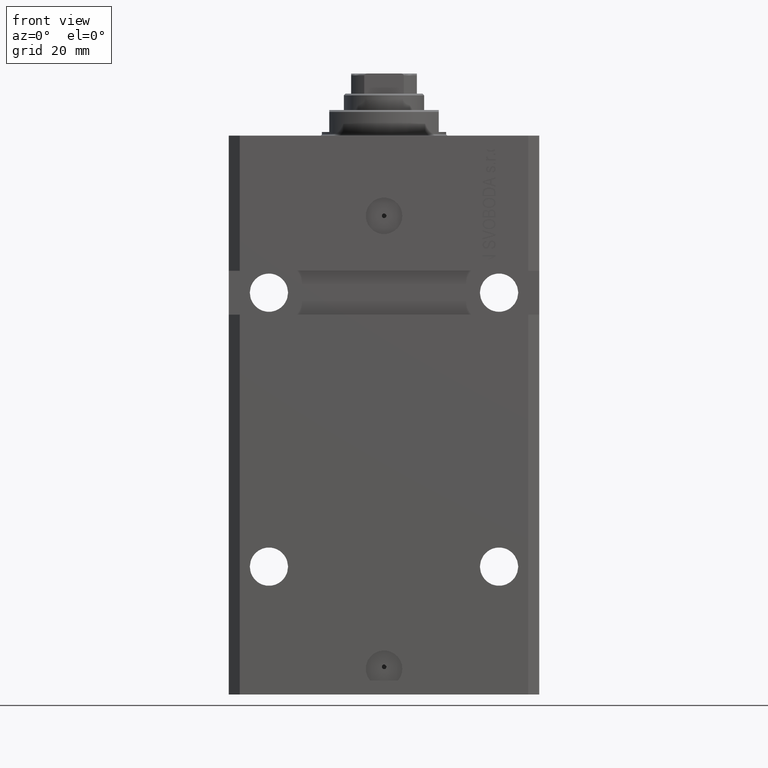
[diagram: clean part render]
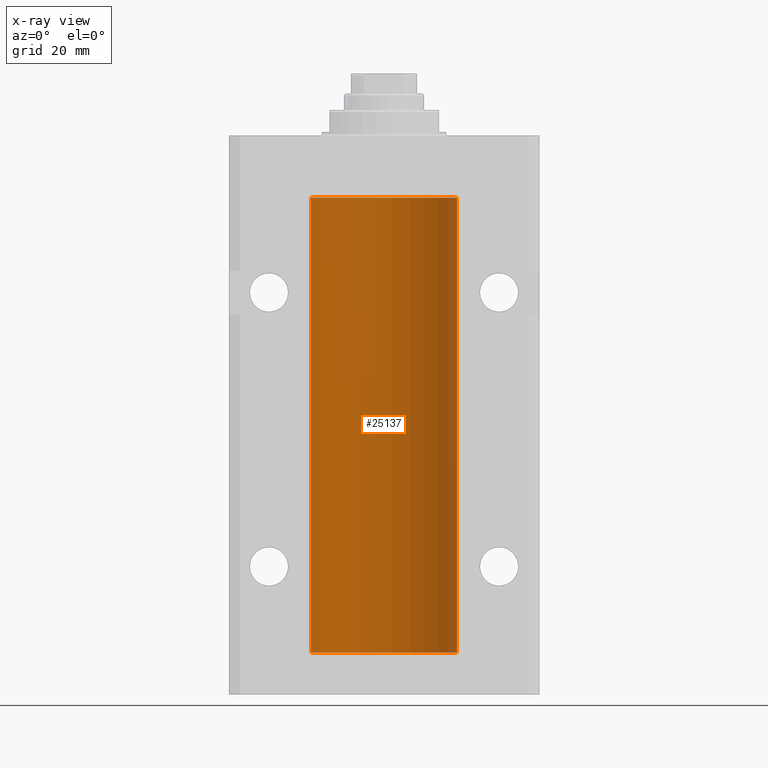
[diagram: x-ray — body ghosted, one internal face saturated and labeled with its STEP entity id]
A machine part, front view, then the same camera in x-ray: the body is ghosted and one INTERNAL B-rep face — a face not visible from any outside direction — is saturated and labeled: STEP entity #25137.
In plain terms, the highlighted cylindrical surface (partial cylindrical patch) has radius 20 mm, axis along (0, 0, 1).
Its self-contained STEP definition (entity closure, byte-faithful):
#166 = DIRECTION ( 'NONE',  ( -0.000000000000000000, -0.000000000000000000, 1.000000000000000000 ) ) ;
#390 = CARTESIAN_POINT ( 'NONE',  ( -20.00000000000000000, 2.449293598294706513E-15, -141.5999999999999943 ) ) ;
#418 = CARTESIAN_POINT ( 'NONE',  ( -19.99023380173166231, 0.6249420416828387337, -138.8367079305639606 ) ) ;
#2131 = B_SPLINE_CURVE_WITH_KNOTS ( 'NONE', 3,
 ( #23390, #3188, #6182, #9859, #37136, #12846, #9406, #44469, #37367, #23612, #5728, #19727 ),
 .UNSPECIFIED., .F., .F.,
 ( 4, 2, 2, 2, 2, 4 ),
 ( 5.848927291235706941E-19, 0.0002442693137305304075, 0.0004885386274610601645, 0.0009770772549221123059, 0.001465615882383164339, 0.001954154509844215938 ),
 .UNSPECIFIED. ) ;
#2950 = CIRCLE ( 'NONE', #10259, 20.00000000000000000 ) ;
#3008 = VERTEX_POINT ( 'NONE', #27923 ) ;
#3188 = CARTESIAN_POINT ( 'NONE',  ( -19.99999999999999645, 0.08259581631026780002, -23.37500000000000000 ) ) ;
#3289 = DIRECTION ( 'NONE',  ( -0.000000000000000000, -0.000000000000000000, 1.000000000000000000 ) ) ;
#3845 = B_SPLINE_CURVE_WITH_KNOTS ( 'NONE', 3,
 ( #9856, #31152, #7536, #42374, #21758, #42154, #418, #31830, #28389, #6861, #41700, #18090 ),
 .UNSPECIFIED., .F., .F.,
 ( 4, 2, 2, 2, 2, 4 ),
 ( 5.247116368830962784E-19, 0.0002442693137305545852, 0.0004885386274611086283, 0.0009770772549221576255, 0.001465615882383206840, 0.001954154509844256270 ),
 .UNSPECIFIED. ) ;
#3952 = DIRECTION ( 'NONE',  ( -0.000000000000000000, -0.000000000000000000, 1.000000000000000000 ) ) ;
#4352 = CARTESIAN_POINT ( 'NONE',  ( -20.00000000000000000, 2.449293598294706513E-15, -141.5999999999999943 ) ) ;
#4829 = ORIENTED_EDGE ( 'NONE', *, *, #5371, .F. ) ;
#5072 = DIRECTION ( 'NONE',  ( -0.000000000000000000, -0.000000000000000000, 1.000000000000000000 ) ) ;
#5371 = EDGE_CURVE ( 'NONE', #18981, #3008, #2950, .T. ) ;
#5728 = CARTESIAN_POINT ( 'NONE',  ( -20.00000000000000000, 0.1631688615953320320, -24.62499999999985434 ) ) ;
#6182 = CARTESIAN_POINT ( 'NONE',  ( -19.99947377218718714, 0.1636439183262877461, -23.39126364004656011 ) ) ;
#6861 = CARTESIAN_POINT ( 'NONE',  ( -19.99769349528941120, 0.3253804398728610270, -139.5585582072767750 ) ) ;
#6951 = LINE ( 'NONE', #24144, #29964 ) ;
#7507 = CARTESIAN_POINT ( 'NONE',  ( -20.00000000000000000, 2.449293598294706513E-15, -17.00000000000000000 ) ) ;
#7536 = CARTESIAN_POINT ( 'NONE',  ( -19.99947377218718358, 0.1636439183262808073, -138.3912636400466170 ) ) ;
#7732 = LINE ( 'NONE', #390, #20426 ) ;
#8809 = ORIENTED_EDGE ( 'NONE', *, *, #22483, .T. ) ;
#8848 = CARTESIAN_POINT ( 'NONE',  ( -20.00000000000000000, -2.867584836844214272E-15, -23.37500000000000000 ) ) ;
#9406 = CARTESIAN_POINT ( 'NONE',  ( -19.99023380173166231, 0.6249420416828462832, -23.83670793056396064 ) ) ;
#9856 = CARTESIAN_POINT ( 'NONE',  ( -20.00000000000000000, -1.756252550797319649E-14, -138.3749999999999716 ) ) ;
#9859 = CARTESIAN_POINT ( 'NONE',  ( -19.99766197842594906, 0.3150331617867667688, -23.45402070102505476 ) ) ;
#10138 = DIRECTION ( 'NONE',  ( 1.000000000000000000, 0.000000000000000000, 0.000000000000000000 ) ) ;
#10259 = AXIS2_PLACEMENT_3D ( 'NONE', #13130, #13809, #10138 ) ;
#12846 = CARTESIAN_POINT ( 'NONE',  ( -19.99256581701871482, 0.5573276956902001311, -23.67348565770948809 ) ) ;
#13130 = CARTESIAN_POINT ( 'NONE',  ( 0.000000000000000000, 0.000000000000000000, -141.5999999999999943 ) ) ;
#13809 = DIRECTION ( 'NONE',  ( 0.000000000000000000, 0.000000000000000000, 1.000000000000000000 ) ) ;
#13852 = EDGE_LOOP ( 'NONE', ( #45213, #4829, #44531, #41683, #19485, #8809, #36290, #24441 ) ) ;
#13984 = CARTESIAN_POINT ( 'NONE',  ( 20.00000000000000000, 0.000000000000000000, -141.5999999999999943 ) ) ;
#16621 = DIRECTION ( 'NONE',  ( 1.000000000000000000, 0.000000000000000000, 0.000000000000000000 ) ) ;
#17383 = VERTEX_POINT ( 'NONE', #33128 ) ;
#17680 = LINE ( 'NONE', #4352, #28957 ) ;
#18090 = CARTESIAN_POINT ( 'NONE',  ( -20.00000000000010303, 3.580159249456421507E-13, -139.6250000000033253 ) ) ;
#18356 = DIRECTION ( 'NONE',  ( -0.000000000000000000, -0.000000000000000000, 1.000000000000000000 ) ) ;
#18981 = VERTEX_POINT ( 'NONE', #13984 ) ;
#19028 = VERTEX_POINT ( 'NONE', #8848 ) ;
#19485 = ORIENTED_EDGE ( 'NONE', *, *, #35131, .F. ) ;
#19727 = CARTESIAN_POINT ( 'NONE',  ( -20.00000000000010303, 3.580159282543646009E-13, -24.62500000000332889 ) ) ;
#20426 = VECTOR ( 'NONE', #166, 1000.000000000000000 ) ;
#21758 = CARTESIAN_POINT ( 'NONE',  ( -19.99638934703457238, 0.3843678041337506568, -138.5004636297809952 ) ) ;
#21804 = EDGE_CURVE ( 'NONE', #34528, #17383, #3845, .T. ) ;
#22483 = EDGE_CURVE ( 'NONE', #19028, #30666, #2131, .T. ) ;
#23390 = CARTESIAN_POINT ( 'NONE',  ( -20.00000000000000000, -2.867584836844214272E-15, -23.37500000000000000 ) ) ;
#23612 = CARTESIAN_POINT ( 'NONE',  ( -19.99769349528941120, 0.3253804398728645242, -24.55855820727680339 ) ) ;
#24144 = CARTESIAN_POINT ( 'NONE',  ( 20.00000000000000000, 0.000000000000000000, -141.5999999999999943 ) ) ;
#24441 = ORIENTED_EDGE ( 'NONE', *, *, #21804, .T. ) ;
#25137 = ADVANCED_FACE ( 'NONE', ( #31037 ), #41585, .F. ) ;
#26019 = AXIS2_PLACEMENT_3D ( 'NONE', #42636, #32321, #35086 ) ;
#26828 = LINE ( 'NONE', #36474, #36516 ) ;
#27534 = EDGE_CURVE ( 'NONE', #28066, #35239, #37010, .T. ) ;
#27628 = EDGE_CURVE ( 'NONE', #3008, #17383, #17680, .T. ) ;
#27923 = CARTESIAN_POINT ( 'NONE',  ( -20.00000000000000000, 2.449293598294706513E-15, -141.5999999999999943 ) ) ;
#28066 = VERTEX_POINT ( 'NONE', #41631 ) ;
#28389 = CARTESIAN_POINT ( 'NONE',  ( -19.99253506710755346, 0.5587120480776690545, -139.3251162083025463 ) ) ;
#28889 = AXIS2_PLACEMENT_3D ( 'NONE', #34707, #3289, #16621 ) ;
#28957 = VECTOR ( 'NONE', #18356, 1000.000000000000000 ) ;
#29964 = VECTOR ( 'NONE', #3952, 1000.000000000000000 ) ;
#30666 = VERTEX_POINT ( 'NONE', #44236 ) ;
#31037 = FACE_OUTER_BOUND ( 'NONE', #13852, .T. ) ;
#31152 = CARTESIAN_POINT ( 'NONE',  ( -20.00000000000000000, 0.08259581631025542103, -138.3749999999999716 ) ) ;
#31830 = CARTESIAN_POINT ( 'NONE',  ( -19.99023018003212471, 0.6250578794725458742, -139.1628480970496753 ) ) ;
#32321 = DIRECTION ( 'NONE',  ( 0.000000000000000000, 0.000000000000000000, 1.000000000000000000 ) ) ;
#32360 = CARTESIAN_POINT ( 'NONE',  ( -20.00000000000000000, -1.756252550797319649E-14, -138.3749999999999716 ) ) ;
#33128 = CARTESIAN_POINT ( 'NONE',  ( -20.00000000000010303, 3.580159249456421507E-13, -139.6250000000033253 ) ) ;
#34528 = VERTEX_POINT ( 'NONE', #32360 ) ;
#34669 = EDGE_CURVE ( 'NONE', #34528, #30666, #26828, .T. ) ;
#34707 = CARTESIAN_POINT ( 'NONE',  ( 0.000000000000000000, 0.000000000000000000, -141.5999999999999943 ) ) ;
#35086 = DIRECTION ( 'NONE',  ( 1.000000000000000000, 0.000000000000000000, 0.000000000000000000 ) ) ;
#35131 = EDGE_CURVE ( 'NONE', #19028, #35239, #7732, .T. ) ;
#35239 = VERTEX_POINT ( 'NONE', #7507 ) ;
#36290 = ORIENTED_EDGE ( 'NONE', *, *, #34669, .F. ) ;
#36474 = CARTESIAN_POINT ( 'NONE',  ( -20.00000000000000000, 2.449293598294706513E-15, -141.5999999999999943 ) ) ;
#36516 = VECTOR ( 'NONE', #5072, 1000.000000000000000 ) ;
#37010 = CIRCLE ( 'NONE', #26019, 20.00000000000000000 ) ;
#37136 = CARTESIAN_POINT ( 'NONE',  ( -19.99638934703457593, 0.3843678041337688644, -23.50046362978100944 ) ) ;
#37367 = CARTESIAN_POINT ( 'NONE',  ( -19.99253506710754991, 0.5587120480776751608, -24.32511620830248589 ) ) ;
#40179 = EDGE_CURVE ( 'NONE', #18981, #28066, #6951, .T. ) ;
#41585 = CYLINDRICAL_SURFACE ( 'NONE', #28889, 20.00000000000000000 ) ;
#41631 = CARTESIAN_POINT ( 'NONE',  ( 20.00000000000000000, 0.000000000000000000, -17.00000000000000000 ) ) ;
#41683 = ORIENTED_EDGE ( 'NONE', *, *, #27534, .T. ) ;
#41700 = CARTESIAN_POINT ( 'NONE',  ( -19.99999999999999645, 0.1631688615953307553, -139.6249999999998010 ) ) ;
#42154 = CARTESIAN_POINT ( 'NONE',  ( -19.99256581701871482, 0.5573276956901845880, -138.6734856577095059 ) ) ;
#42374 = CARTESIAN_POINT ( 'NONE',  ( -19.99766197842594195, 0.3150331617867615508, -138.4540207010250299 ) ) ;
#42636 = CARTESIAN_POINT ( 'NONE',  ( 0.000000000000000000, 0.000000000000000000, -17.00000000000000000 ) ) ;
#44236 = CARTESIAN_POINT ( 'NONE',  ( -20.00000000000010303, 3.580159282543646009E-13, -24.62500000000332889 ) ) ;
#44469 = CARTESIAN_POINT ( 'NONE',  ( -19.99023018003212471, 0.6250578794725500931, -24.16284809704970371 ) ) ;
#44531 = ORIENTED_EDGE ( 'NONE', *, *, #40179, .T. ) ;
#45213 = ORIENTED_EDGE ( 'NONE', *, *, #27628, .F. ) ;